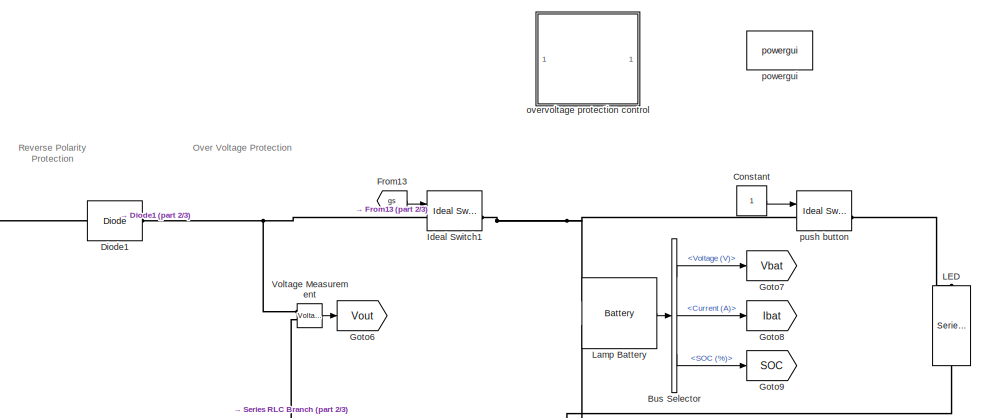
[diagram: root canvas - part 1/3, top right region]
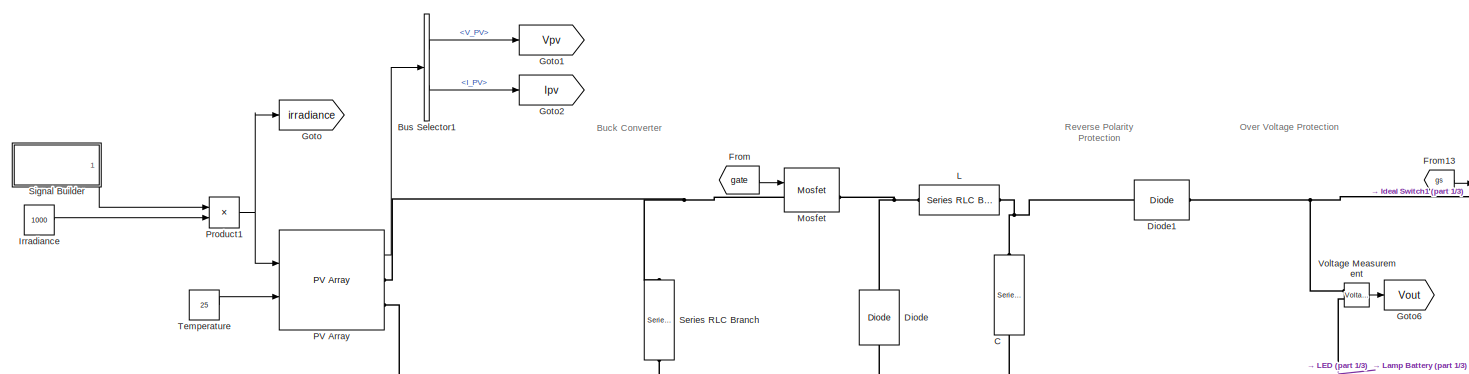
[diagram: root canvas - part 2/3, top center region]
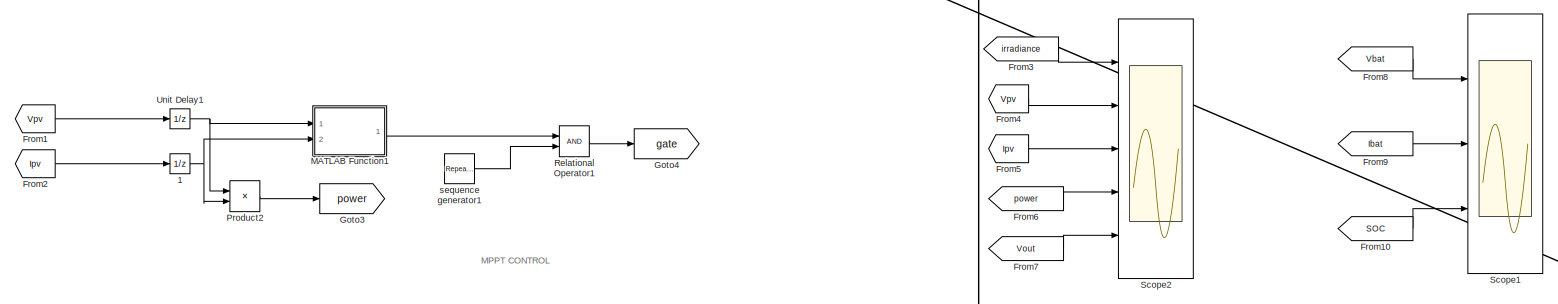
[diagram: root canvas - part 3/3, full width, bottom band]
MODEL slx_a2140fe19e01
KIND model
CONFIG AbsTol = auto
CONFIG FixedStep = auto
CONFIG MaxStep = auto
CONFIG MinStep = auto
CONFIG RelTol = 1e-3
CONFIG SampleTimeConstraint = Unconstrained
CONFIG Solver = ode23t
CONFIG SolverMode = Auto
CONFIG SolverName = ode23t
CONFIG StartTime = 0.0
CONFIG StopTime = 1
BLOCK [UnitDelay]  1
  InputProcessing = Elements as channels (sample based)
  SampleTime = 1e-4
BLOCK [BusSelector] Bus Selector
  OutputSignals = Voltage (V),Current (A),SOC (%)
  Ports = [1, 3]
BLOCK [BusSelector] Bus Selector1
  OutputSignals = V_PV,I_PV
  Ports = [1, 2]
BLOCK [Reference] C  REF=powerlib/Elements/Series RLC Branch
  BranchType = C
  Capacitance = 600e-6
  Inductance = 0.783e-3
  InitialCurrent = 0
  InitialVoltage = 0
  LConnTagsString = __new0
  Measurements = None
  Ports = [0, 0, 0, 0, 0, 1, 1]
  RConnTagsString = __new0
  Resistance = 0.0001
  SetiL0 = off
  Setx0 = off
  SourceBlock = powerlib/Elements/Series RLC Branch
  SourceType = Series RLC Branch
BLOCK [Constant] Constant
BLOCK [Reference] Diode  REF=powerlib/Power
Electronics/Diode
  Cs = 250e-9
  IC = 0
  Lon = 0
  Measurements = off
  Ports = [0, 0, 0, 0, 0, 1, 1]
  Ron = 0.001
  Rs = 500
  SourceBlock = powerlib/Power\nElectronics/Diode
  SourceType = Diode
  UseSnubber = off
  Vf = 0.8
BLOCK [Reference] Diode1  REF=powerlib/Power
Electronics/Diode
  Cs = 250e-9
  IC = 0
  Lon = 0
  Measurements = off
  Ports = [0, 0, 0, 0, 0, 1, 1]
  Ron = 0.001
  Rs = 500
  SourceBlock = powerlib/Power\nElectronics/Diode
  SourceType = Diode
  UseSnubber = off
  Vf = 0.8
BLOCK [From] From
  GotoTag = gate
  TagVisibility = global
BLOCK [From] From1
  GotoTag = Vpv
  TagVisibility = global
BLOCK [From] From10
  GotoTag = SOC
  TagVisibility = global
BLOCK [From] From13
  GotoTag = gs
  TagVisibility = global
BLOCK [From] From2
  GotoTag = Ipv
  TagVisibility = global
BLOCK [From] From3
  GotoTag = irradiance
  TagVisibility = global
BLOCK [From] From4
  GotoTag = Vpv
  TagVisibility = global
BLOCK [From] From5
  GotoTag = Ipv
  TagVisibility = global
BLOCK [From] From6
  GotoTag = power
  TagVisibility = global
BLOCK [From] From7
  GotoTag = Vout
  TagVisibility = global
BLOCK [From] From8
  GotoTag = Vbat
  TagVisibility = global
BLOCK [From] From9
  GotoTag = Ibat
  TagVisibility = global
BLOCK [Goto] Goto
  GotoTag = irradiance
  TagVisibility = global
BLOCK [Goto] Goto1
  GotoTag = Vpv
  TagVisibility = global
BLOCK [Goto] Goto2
  GotoTag = Ipv
  TagVisibility = global
BLOCK [Goto] Goto3
  GotoTag = power
  TagVisibility = global
BLOCK [Goto] Goto4
  GotoTag = gate
  TagVisibility = global
BLOCK [Goto] Goto6
  GotoTag = Vout
  TagVisibility = global
BLOCK [Goto] Goto7
  GotoTag = Vbat
  TagVisibility = global
BLOCK [Goto] Goto8
  GotoTag = Ibat
  TagVisibility = global
BLOCK [Goto] Goto9
  GotoTag = SOC
  TagVisibility = global
BLOCK [Reference] Ideal Switch1  REF=powerlib/Power
Electronics/Ideal Switch
  Cs = inf
  IC = 1
  Lon = 0
  Measurements = on
  Ports = [1, 1, 0, 0, 0, 1, 1]
  Ron = 0.001
  Rs = 1e5
  SourceBlock = powerlib/Power\nElectronics/Ideal Switch
  SourceType = Ideal Switch
BLOCK [Constant] Irradiance
  Value = 1000
BLOCK [Reference] L  REF=powerlib/Elements/Series RLC Branch
  BranchType = L
  Capacitance = 1000e-6
  Inductance = 0.783e-3
  InitialCurrent = 0
  InitialVoltage = 0
  LConnTagsString = __new0
  Measurements = None
  Ports = [0, 0, 0, 0, 0, 1, 1]
  RConnTagsString = __new0
  Resistance = 0.0001
  SetiL0 = off
  Setx0 = off
  SourceBlock = powerlib/Elements/Series RLC Branch
  SourceType = Series RLC Branch
BLOCK [Reference] LED   REF=powerlib/Elements/Series RLC Branch
  BranchType = R
  Capacitance = 1e-6
  Inductance = 1e-3
  InitialCurrent = 0
  InitialVoltage = 0
  LConnTagsString = __new0
  Measurements = None
  Ports = [0, 0, 0, 0, 0, 1, 1]
  RConnTagsString = __new0
  Resistance = 10
  SetiL0 = off
  Setx0 = off
  SourceBlock = powerlib/Elements/Series RLC Branch
  SourceType = Series RLC Branch
BLOCK [Reference] Lamp Battery  REF=electricdrivelib/Extra Sources/Battery
  BatType = Lithium-Ion
  Batt_Tr = 1e-6
  Dis_rate = 43.4783
  FullV = 13.9678
  MaxQ = 100
  NomQ = 100
  NomV = 12
  Normal_OP = 90.4348
  Ports = [0, 1, 0, 0, 0, 2]
  PresetModel = on
  R = 0.0012
  SOC = 45
  ShowDetailedParameters = off
  SourceBlock = electricdrivelib/Extra Sources/Battery
  SourceType = Battery
  Units = Time
  current = [6.5 13 32.5]
  expZone = [12.9646      4.91304]
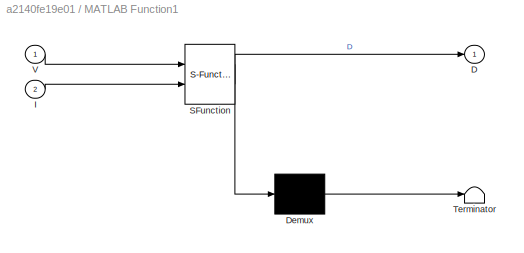
BLOCK [SubSystem] MATLAB Function1
  ErrorFcn = Stateflow.Translate.translate
  PermitHierarchicalResolution = ExplicitOnly
  Ports = [2, 1]
  RequestExecContextInheritance = off
  SFBlockType = MATLAB Function
  TreatAsAtomicUnit = on
BLOCK [Demux] MATLAB Function1/ Demux 
  Outputs = 1
  Ports = [1, 1]
BLOCK [S-Function] MATLAB Function1/ SFunction 
  EnableBusSupport = on
  FunctionName = sf_sfun
  PortCounts = [2 2]
  Ports = [2, 2]
  Tag = Stateflow S-Function solarrrrr 1
BLOCK [Terminator] MATLAB Function1/ Terminator 
BLOCK [Outport] MATLAB Function1/D
  IconDisplay = Port number
BLOCK [Inport] MATLAB Function1/I
  IconDisplay = Port number
  Port = 2
BLOCK [Inport] MATLAB Function1/V
  IconDisplay = Port number
BLOCK [Reference] Mosfet  REF=powerlib/Power
Electronics/Mosfet
  Cs = inf
  IC = 0
  Lon = 0
  Measurements = on
  Ports = [1, 1, 0, 0, 0, 1, 1]
  Rd = 0.01
  Ron = 0.1
  Rs = 1e5
  SourceBlock = powerlib/Power\nElectronics/Mosfet
  SourceType = Mosfet
  Vfd = 0
BLOCK [Reference] PV Array  REF=re_lib/Solar/PV Array
  BAL = on
  I0 = 2.9259e-10
  IL = 7.8649
  Im = 7.35
  Isc = 7.84
  ModuleName = 1Soltech 1STH-215-P
  Ncell = 60
  Npar = 1
  Nser = 1
  PlotType = array @ 25 deg.C & specified irradiances
  PlotWhenSelected = off
  Pm = 213.15
  Ports = [2, 1, 0, 0, 0, 0, 2]
  Rs = 0.39383
  Rsh = 313.3991
  S_vec = [ 1000  500  100 ]
  SourceBlock = re_lib/Solar/PV Array
  SourceType = PV array
  Tc = 1e-6
  Temp_C_vec = [ 45 25  ]
  Tfilter = 5e-5
  Vm = 29
  Voc = 36.3
  alpha_Isc = 0.007997
  alpha_Isc_pc = 0.102
  beta_Voc = -0.13104
  beta_Voc_pc = -0.36099
  nI = 0.98117
BLOCK [Product] Product1
  InputSameDT = off
  OutDataTypeStr = Inherit: Inherit via internal rule
  Ports = [2, 1]
  RndMeth = Floor
  SaturateOnIntegerOverflow = off
BLOCK [Product] Product2
  InputSameDT = off
  OutDataTypeStr = Inherit: Inherit via internal rule
  Ports = [2, 1]
  RndMeth = Floor
  SaturateOnIntegerOverflow = off
BLOCK [RelationalOperator] Relational Operator1
  InputSameDT = off
  OutDataTypeStr = boolean
  Ports = [2, 1]
BLOCK [Scope] Scope1
  DataFormat = StructureWithTime
  Floating = off
  LimitDataPoints = off
  NumInputPorts = 3
  Ports = [3]
  SaveName = soc
  TimeRange = 1
  YMax = 13.5~0~45.0018
  YMin = 12.9~-500~45
  ZoomMode = xonly
BLOCK [Scope] Scope2
  DataFormat = StructureWithTime
  Floating = off
  LimitDataPoints = off
  NumInputPorts = 5
  Ports = [5]
  SaveName = soc1
  TimeRange = 2
  YMax = 45.0065~5~5~5~5
  YMin = 45~-5~-5~-5~-5
  ZoomMode = yonly
BLOCK [Reference] Series RLC Branch  REF=powerlib/Elements/Series RLC Branch
  BranchType = RC
  Capacitance = 1000e-6
  Inductance = 1e-3
  InitialCurrent = 0
  InitialVoltage = 0
  LConnTagsString = __new0
  Measurements = None
  Ports = [0, 0, 0, 0, 0, 1, 1]
  RConnTagsString = __new0
  Resistance = 0.0001
  SetiL0 = off
  Setx0 = off
  SourceBlock = powerlib/Elements/Series RLC Branch
  SourceType = Series RLC Branch
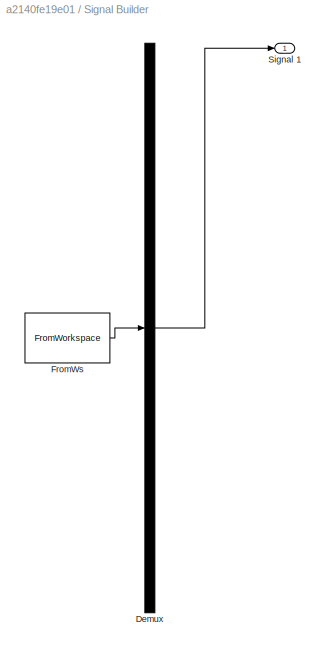
BLOCK [SubSystem] Signal Builder
  ClipboardFcn = sigbuilder_block('clipboard');
  CloseFcn = sigbuilder_block('close');
  ContinueFcn = sigbuilder_block('continue');
  CopyFcn = sigbuilder_block('copy');
  DeleteFcn = sigbuilder_block('delete');
  LoadFcn = sigbuilder_block('load');
  MaskHideContents = on
  ModelCloseFcn = sigbuilder_block('modelClose');
  NameChangeFcn = sigbuilder_block('namechange');
  OpenFcn = sigbuilder_block('open',[437.6 199.2 550.4 400 ]);
  PauseFcn = sigbuilder_block('pause');
  Ports = [0, 1]
  PreSaveFcn = sigbuilder_block('preSave');
  RequestExecContextInheritance = off
  StartFcn = sigbuilder_block('start');
  StopFcn = sigbuilder_block('stop');
  Tag = STV Subsys
BLOCK [Demux] Signal Builder/Demux
  Outputs = 1
  Ports = [1, 1]
  Tag = STV Demux
BLOCK [FromWorkspace] Signal Builder/FromWs
  SampleTime = 0
  Tag = STV FromWs
  VariableName = tuvar
  ZeroCross = on
BLOCK [Outport] Signal Builder/Signal 1
  IconDisplay = Port number
  Tag = STV Outport
BLOCK [Constant] Temperature
  Value = 25
BLOCK [UnitDelay] Unit Delay1
  InputProcessing = Elements as channels (sample based)
  SampleTime = 1e-4
BLOCK [Reference] Voltage Measurement  REF=powerlib/Measurements/Voltage Measurement
  OutputType = Complex
  PSBequivalent = 0
  PhasorSimulation = off
  Ports = [0, 1, 0, 0, 0, 2]
  SourceBlock = powerlib/Measurements/Voltage Measurement
  SourceType = Voltage Measurement
  UserDataPersistent = on
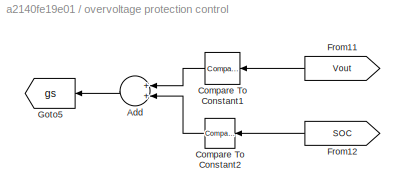
BLOCK [SubSystem] overvoltage protection control 
  Ports = []
  RequestExecContextInheritance = off
BLOCK [Sum] overvoltage protection control /Add
  InputSameDT = off
  OutDataTypeStr = Inherit: Inherit via internal rule
  Ports = [2, 1]
  SaturateOnIntegerOverflow = off
BLOCK [Reference] overvoltage protection control /Compare To Constant1  REF=simulink/Logic and Bit
Operations/Compare
To Constant
  OutDataTypeStr = boolean
  Ports = [1, 1]
  SourceBlock = simulink/Logic and Bit\nOperations/Compare\nTo Constant
  SourceType = Compare To Constant
  ZeroCross = on
  const = 13.03
  relop = >=
BLOCK [Reference] overvoltage protection control /Compare To Constant2  REF=simulink/Logic and Bit
Operations/Compare
To Constant
  OutDataTypeStr = boolean
  Ports = [1, 1]
  SourceBlock = simulink/Logic and Bit\nOperations/Compare\nTo Constant
  SourceType = Compare To Constant
  ZeroCross = on
  const = 85
  relop = >=
BLOCK [From] overvoltage protection control /From11
  GotoTag = Vout
  TagVisibility = global
BLOCK [From] overvoltage protection control /From12
  GotoTag = SOC
  TagVisibility = global
BLOCK [Goto] overvoltage protection control /Goto5
  GotoTag = gs
  TagVisibility = global
BLOCK [Reference] powergui  REF=powerlib/powergui
  DisableRonSwitches = off
  DisableSnubberDevices = off
  DisableVfSwitches = off
  DisplayEquations = off
  DisplayStyle = 1
  EnableUseOfTLC = off
  ErrMax = 1e-4
  Frange = [0:2:500]
  FreqAxis = off
  FunctionMessages = off
  HookPort = off
  Interpol = off
  Iterations = 50
  MaxFrequency = 1000
  Pbase = 100e6
  Ports = []
  Priority = 1
  ResistiveCurrentMeasurement = off
  RestoreLinks = warning
  RmsSteady = 1
  SPID = off
  SampleTime = 1e-6
  ShowGrid = off
  SolverType = Tustin/Backward Euler (TBE)
  SourceBlock = powerlib/powergui
  SourceType = PSB option menu block
  StartTime = 0.0
  SwTol = 0
  Ts = 100
  UnitsV = kV
  UnitsW = MW
  UserDataPersistent = on
  Xlog = on
  Ylog = off
  ZoomFFT = off
  buscounter = 0
  cycles = 1
  display = off
  echomessages = off
  frequency = 60
  frequencyindice = 0
  frequencyindicesteady = 1
  fundamental = 60
  methode = off
  save = off
  structure = 0
  variable = ZData
  x0status = blocks
BLOCK [Reference] push button  REF=powerlib/Power
Electronics/Ideal Switch
  Cs = inf
  IC = 0
  Lon = 0
  Measurements = on
  Ports = [1, 1, 0, 0, 0, 1, 1]
  Ron = 0.001
  Rs = 1e5
  SourceBlock = powerlib/Power\nElectronics/Ideal Switch
  SourceType = Ideal Switch
BLOCK [Reference] sequence generator1  REF=simulink/Sources/Repeating
Sequence
  Ports = [0, 1]
  SourceBlock = simulink/Sources/Repeating\nSequence
  SourceType = Repeating table
  rep_seq_t = [0 0.0002]
  rep_seq_y = [0 1]
ANNOTATION (root): Buck Converter
ANNOTATION (root): Over Voltage Protection
ANNOTATION (root): Reverse Polarity Protection
ANNOTATION (root): MPPT CONTROL
NET  1:1 -> MATLAB Function1:2, Product2:2
LINE Bus Selector1:1 -> Goto1:1
LINE Bus Selector1:2 -> Goto2:1
LINE Bus Selector:1 -> Goto7:1
LINE Bus Selector:2 -> Goto8:1
LINE Bus Selector:3 -> Goto9:1
LINE Constant:1 -> push button:1
LINE From10:1 -> Scope1:3
LINE From13:1 -> Ideal Switch1:1
LINE From1:1 -> Unit Delay1:1
LINE From2:1 ->  1:1
LINE From3:1 -> Scope2:1
LINE From4:1 -> Scope2:2
LINE From5:1 -> Scope2:3
LINE From6:1 -> Scope2:4
LINE From7:1 -> Scope2:5
LINE From8:1 -> Scope1:1
LINE From9:1 -> Scope1:2
LINE From:1 -> Mosfet:1
LINE Irradiance:1 -> Product1:2
LINE Lamp Battery:1 -> Bus Selector:1
LINE MATLAB Function1:1 -> Relational Operator1:1
LINE PV Array:1 -> Bus Selector1:1
NET Product1:1 -> Goto:1, PV Array:1
LINE Product2:1 -> Goto3:1
LINE Relational Operator1:1 -> Goto4:1
LINE Signal Builder:1 -> Product1:1
LINE Temperature:1 -> PV Array:2
NET Unit Delay1:1 -> MATLAB Function1:1, Product2:1
LINE Voltage Measurement:1 -> Goto6:1
LINE overvoltage protection control /Add:1 -> overvoltage protection control /Goto5:1
LINE overvoltage protection control /Compare To Constant1:1 -> overvoltage protection control /Add:1
LINE overvoltage protection control /Compare To Constant2:1 -> overvoltage protection control /Add:2
LINE overvoltage protection control /From11:1 -> overvoltage protection control /Compare To Constant1:1
LINE overvoltage protection control /From12:1 -> overvoltage protection control /Compare To Constant2:1
LINE sequence generator1:1 -> Relational Operator1:2
PNET net1: C:LConn1 -- Diode1:LConn1 -- L:LConn1
PNET net2: C:RConn1 -- Diode:LConn1 -- LED :RConn1 -- Lamp Battery:LConn2 -- PV Array:RConn2 -- Series RLC Branch:RConn1 -- Voltage Measurement:LConn2
PNET net3: Diode1:RConn1 -- Ideal Switch1:LConn1 -- Voltage Measurement:LConn1
PNET net4: Diode:RConn1 -- L:RConn1 -- Mosfet:RConn1
PNET net5: Ideal Switch1:RConn1 -- Lamp Battery:LConn1 -- push button:LConn1
PLINE LED :LConn1 -- push button:RConn1
PNET net6: Mosfet:LConn1 -- PV Array:RConn1 -- Series RLC Branch:LConn1
note: NET lines group one-source signal fan-out (src -> all destinations, sorted); 1:1 wires keep LINE; PNET lines group multi-terminal physical nets as a canonical sorted terminal list (undirected conserving connections); 2-terminal nets keep the pairwise PLINE form
CHART MATLAB Function1 states=1 transitions=1
  STATE_LABEL 'eML_blk_kernel()'
  STATE_LABEL "SCRIPT:\nfunction D = DutyRatio(V, I)\n\nDmax = 0.95;\nDmin = 0;\nDinit = 0.95;\ndeltaD = 0.0001;\npersistent Vold Pold Dold;\n\ndataType = 'double';\n\nif isempty(Vold)\n    Vold = 0;\n    Pold = 0;\n    Dold = Dinit;\nend\n\nP=V*I;\ndV = V-Vold;\ndP = P-Pold;\n\nif dP ~= 0\n    if dP<0\n        if dV<0\n            D=Dold-deltaD;\n        else\n            D=Dold+deltaD;\n        end\n    else\n        if dV<0\n            D...<+165ch>"
